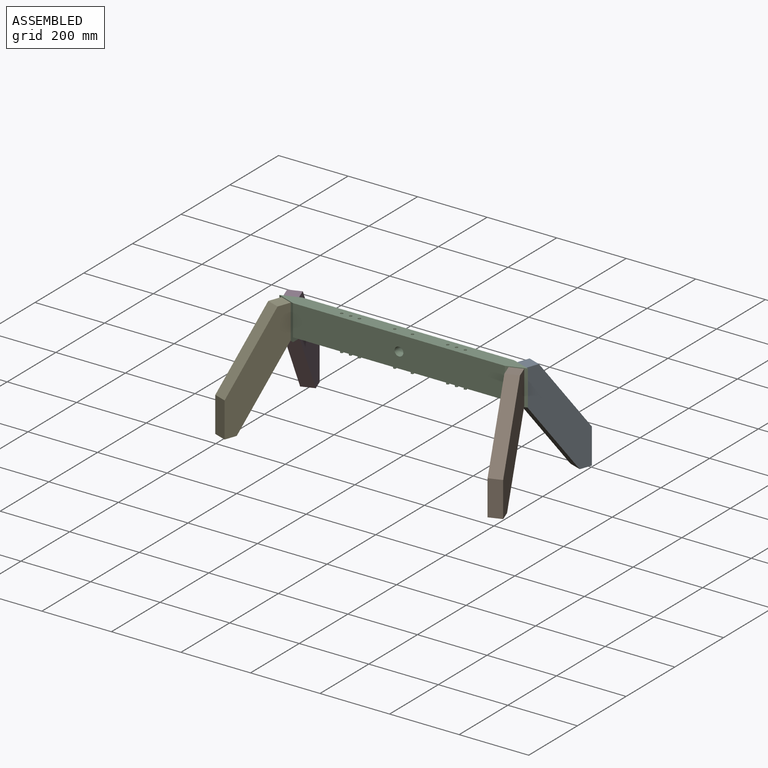
[diagram: assembled view]
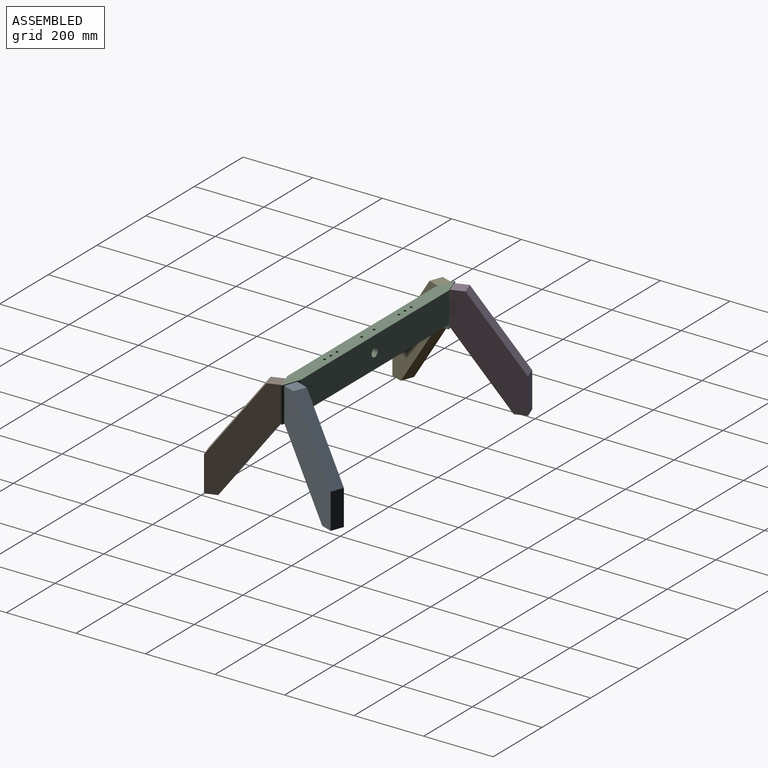
[diagram: assembled view, second angle]
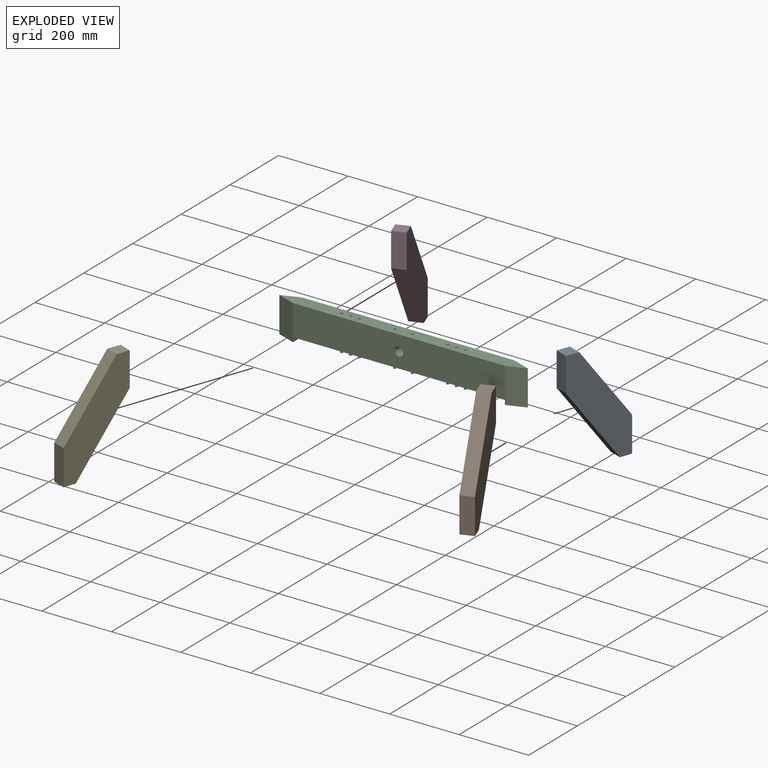
[diagram: exploded view]
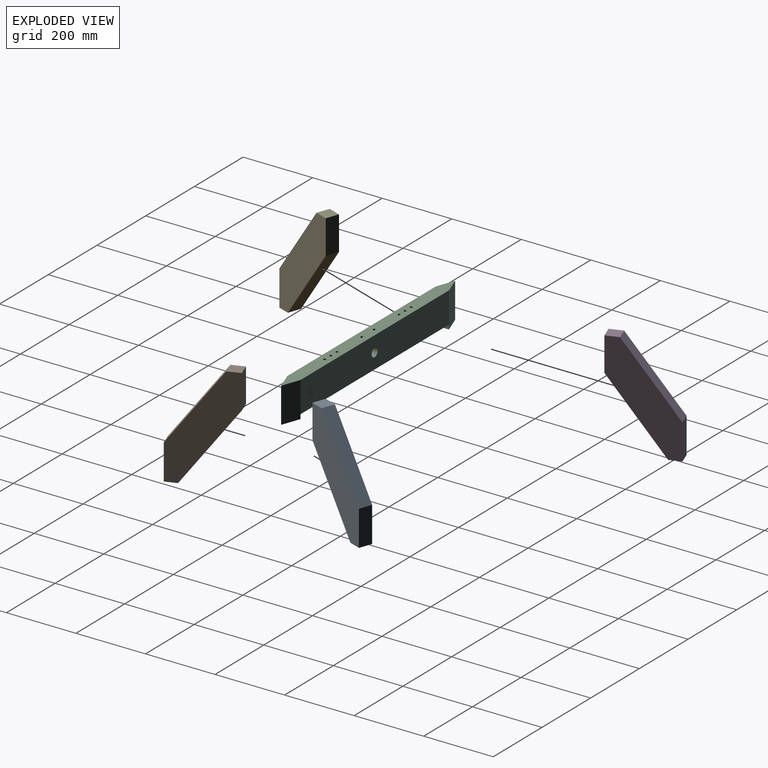
[diagram: exploded view, second angle]
ASSEMBLY  parts=5 mates=4
PART A: 8 faces, bbox 190.5x38.1x304.8 mm
  f0: plane 38.1x38.1mm, normal (0,0,1), area 1451.6mm2, adj f1,f5,f6,f7
  f1: plane 97.37x38.1mm, normal (-1,0,0), area 3709.7mm2, adj f0,f2,f6,f7
  f2: plane 207.43x155.58mm, normal (-0.8,0,-0.6), area 9879mm2, adj f1,f3,f6,f7
  f3: plane 38.1x34.93mm, normal (0,0,-1), area 1330.6mm2, adj f2,f4,f6,f7
  f4: plane 101.6x38.1mm, normal (1,0,0), area 3871mm2, adj f3,f5,f6,f7
  f5: plane 203.2x152.4mm, normal (0.8,0,0.6), area 9677.4mm2, adj f0,f4,f6,f7
  f6: plane 304.8x190.5mm, normal (0,-1,0), area 26444.8mm2, adj f0,f1,f2,f3,f4,f5
  f7: plane 304.8x190.5mm, normal (0,1,0), area 26444.8mm2, adj f0,f1,f2,f3,f4,f5
PART B: same geometry as A
PART C: 45 faces, bbox 714.7x38.1x101.6 mm
  f0: plane 714.67x38.1mm, normal (0,0,1), area 24830.4mm2, adj f3,f4,f6,f7,f10,f11,f29,f31
  f1: plane 609.6x38.1mm, normal (0,0,-1), area 22828.9mm2, adj f3,f4,f5,f9,f13,f15,f17,f19
  f2: cylinder r=12.7mm len=38.1mm, axis (0,1,0), area 3040.2mm2, adj f3,f4
  f3: plane 609.6x88.9mm, normal (0,-1,0), area 53686.7mm2, adj f0,f1,f2,f6,f11
  f4: plane 609.6x88.9mm, normal (0,1,0), area 53686.7mm2, adj f0,f1,f2,f7,f10
  f5: plane 38.1x12.7mm, normal (-1,0,0), area 483.9mm2, adj f1,f6,f7,f8
  f6: plane 101.6x52.53mm, normal (0.34,-0.94,0), area 5677.4mm2, adj f0,f3,f5,f7,f8
  f7: plane 101.6x52.53mm, normal (0.34,0.94,0), area 5677.4mm2, adj f0,f4,f5,f6,f8
  f8: plane 52.53x38.1mm, normal (0,0,-1), area 1000.7mm2, adj f5,f6,f7
  f9: plane 38.1x12.7mm, normal (1,0,0), area 483.9mm2, adj f1,f10,f11,f12
  f10: plane 101.6x52.53mm, normal (-0.34,0.94,0), area 5677.4mm2, adj f0,f4,f9,f11,f12
  f11: plane 101.6x52.53mm, normal (-0.34,-0.94,0), area 5677.4mm2, adj f0,f3,f9,f10,f12
  f12: plane 52.53x38.1mm, normal (0,0,-1), area 1000.7mm2, adj f9,f10,f11
  f13: cylinder r=3.97mm len=12.7mm, axis (0,0,1), area 316.7mm2, adj f1,f14
  f14: plane 7.94x7.94mm, normal (0,0,-1), area 49.5mm2, adj f13
  f15: cylinder r=3.98mm len=12.7mm, axis (0,0,1), area 317.2mm2, adj f1,f16
  f16: plane 7.95x7.95mm, normal (0,0,-1), area 49.6mm2, adj f15
  f17: cylinder r=3.97mm len=12.7mm, axis (0,0,1), area 316.7mm2, adj f1,f18
  f18: plane 7.94x7.94mm, normal (0,0,-1), area 49.5mm2, adj f17
  f19: cylinder r=3.98mm len=12.7mm, axis (0,0,1), area 317.2mm2, adj f1,f20
  f20: plane 7.95x7.95mm, normal (0,0,-1), area 49.6mm2, adj f19
  f21: cylinder r=3.98mm len=12.7mm, axis (0,0,1), area 317.2mm2, adj f1,f22
  f22: plane 7.95x7.95mm, normal (0,0,-1), area 49.6mm2, adj f21
  f23: cylinder r=3.98mm len=12.7mm, axis (0,0,1), area 317.2mm2, adj f1,f24
  f24: plane 7.95x7.95mm, normal (0,0,-1), area 49.6mm2, adj f23
  f25: cylinder r=3.98mm len=12.7mm, axis (0,0,1), area 317.2mm2, adj f1,f26
  f26: plane 7.95x7.95mm, normal (0,0,-1), area 49.6mm2, adj f25
  f27: cylinder r=3.98mm len=12.7mm, axis (0,0,1), area 317.2mm2, adj f1,f28
  f28: plane 7.95x7.95mm, normal (0,0,-1), area 49.6mm2, adj f27
  f29: cylinder r=3.97mm len=12.7mm, axis (0,0,1), area 316.7mm2, adj f0,f30
  f30: plane 7.94x7.94mm, normal (0,0,1), area 49.5mm2, adj f29
  f31: cylinder r=3.98mm len=12.7mm, axis (0,0,1), area 317.2mm2, adj f0,f32
  f32: plane 7.95x7.95mm, normal (0,0,1), area 49.6mm2, adj f31
  f33: cylinder r=3.98mm len=12.7mm, axis (0,0,1), area 317.2mm2, adj f0,f34
  f34: plane 7.95x7.95mm, normal (0,0,1), area 49.6mm2, adj f33
  f35: cylinder r=3.98mm len=12.7mm, axis (0,0,1), area 317.2mm2, adj f0,f36
  f36: plane 7.95x7.95mm, normal (0,0,1), area 49.6mm2, adj f35
  f37: cylinder r=3.98mm len=12.7mm, axis (0,0,1), area 317.2mm2, adj f0,f38
  f38: plane 7.95x7.95mm, normal (0,0,1), area 49.6mm2, adj f37
  f39: cylinder r=3.97mm len=12.7mm, axis (0,0,1), area 316.7mm2, adj f0,f40
  f40: plane 7.94x7.94mm, normal (0,0,1), area 49.5mm2, adj f39
  f41: cylinder r=3.98mm len=12.7mm, axis (0,0,1), area 317.2mm2, adj f0,f42
  f42: plane 7.95x7.95mm, normal (0,0,1), area 49.6mm2, adj f41
  f43: cylinder r=3.98mm len=12.7mm, axis (0,0,1), area 317.2mm2, adj f0,f44
  f44: plane 7.95x7.95mm, normal (0,0,1), area 49.6mm2, adj f43
PART D: same geometry as A
PART E: same geometry as A
PLACE A rot(axis=(0,0,1),70.1deg) t=(309.42,-50.17,-7.09)mm
PLACE B rot(axis=(0,0,-1),70.1deg) t=(309.42,50.17,-7.09)mm
PLACE C t=(0,0,1.38)mm
PLACE D rot(axis=(0,0,1),109.9deg) t=(-309.42,-50.17,-7.09)mm
PLACE E rot(axis=(0,0,-1),109.9deg) t=(-309.42,50.17,-7.09)mm
MATE fastened D.f1 <-> C.f10  axis (0.34,-0.94,0) through (-331.07,9.53,-4.97)mm
MATE fastened A.f1 <-> C.f7  axis (-0.34,-0.94,0) through (331.07,9.53,-4.97)mm
MATE fastened E.f1 <-> C.f11  axis (0.34,0.94,0) through (-331.07,-9.52,-4.97)mm
MATE fastened B.f1 <-> C.f6  axis (-0.34,0.94,0) through (331.07,-9.52,-4.97)mm
